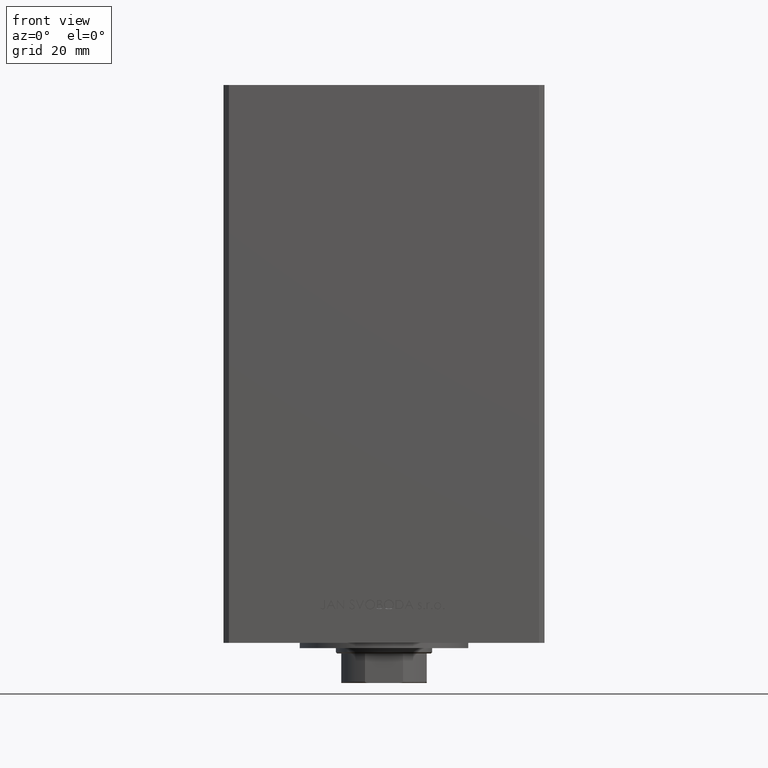
[diagram: clean part render]
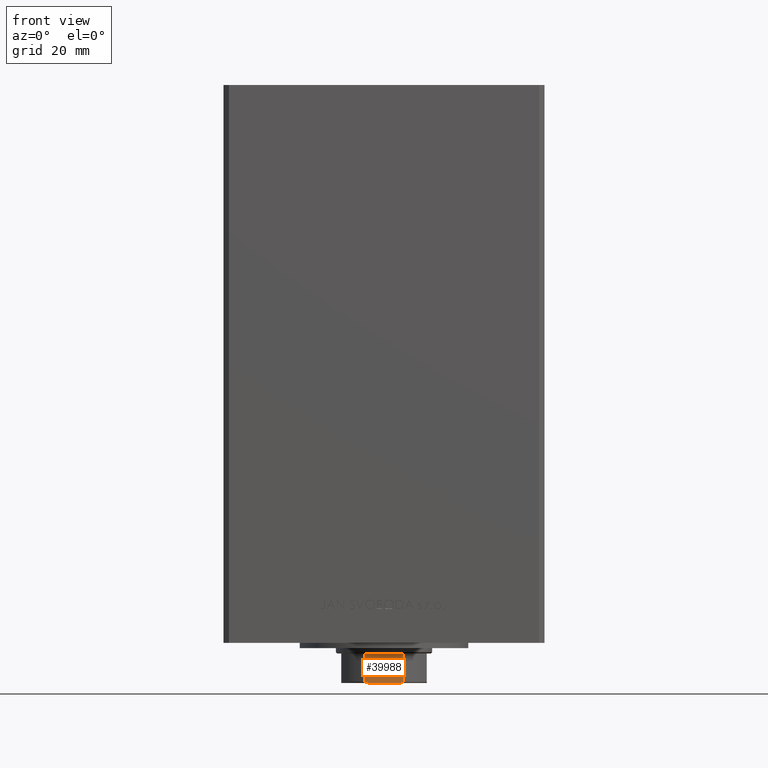
[diagram: same view with one face highlighted and labeled with its STEP entity id]
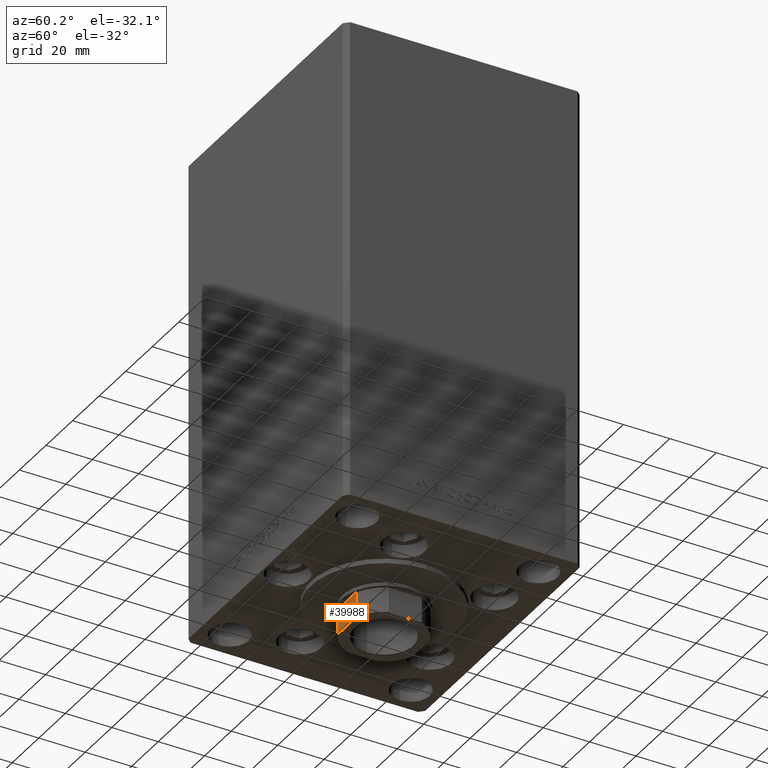
[diagram: same view with one face highlighted and labeled with its STEP entity id]
A machine part, front view. The second image highlights one B-rep face of the part: STEP entity #39988.
A second angle (auxiliary view) of the same face is appended — the face is thin or edge-on in the first view.
In plain terms, the highlighted planar face has unit normal (0, 1, 0).
Its self-contained STEP definition (entity closure, byte-faithful):
#18 = CARTESIAN_POINT ( 'NONE',  ( -6.967626683430006018, -16.00000000000000000, 188.9712986014228022 ) ) ;
#855 = VECTOR ( 'NONE', #36542, 1000.000000000000000 ) ;
#1130 = VERTEX_POINT ( 'NONE', #38748 ) ;
#2425 = CARTESIAN_POINT ( 'NONE',  ( 6.746962372739932157, -16.00000000000000000, 189.1011068297690372 ) ) ;
#3897 = CARTESIAN_POINT ( 'NONE',  ( 7.088723439378916247, -16.00000000000000000, 178.2500000000000284 ) ) ;
#3988 = CARTESIAN_POINT ( 'NONE',  ( -5.999698100839998993, -16.00000000000000355, 189.2500000000000000 ) ) ;
#4248 = DIRECTION ( 'NONE',  ( -1.084202172485504557E-16, 1.000000000000000000, 0.000000000000000000 ) ) ;
#4611 = AXIS2_PLACEMENT_3D ( 'NONE', #46007, #4248, #26877 ) ;
#6490 = ORIENTED_EDGE ( 'NONE', *, *, #20732, .T. ) ;
#8398 = CARTESIAN_POINT ( 'NONE',  ( 7.088723439378916247, -16.00000000000000000, -0.001000000000001000089 ) ) ;
#9873 = CARTESIAN_POINT ( 'NONE',  ( 5.744562646538024175, -16.00000000000000355, 189.2500000000000000 ) ) ;
#10286 = ORIENTED_EDGE ( 'NONE', *, *, #46877, .T. ) ;
#10330 = CARTESIAN_POINT ( 'NONE',  ( -7.088723439378916247, -16.00000000000000000, 188.7500000000000000 ) ) ;
#10978 = FACE_OUTER_BOUND ( 'NONE', #28905, .T. ) ;
#12285 = DIRECTION ( 'NONE',  ( 1.000000000000000000, 1.084202172485504434E-16, 0.000000000000000000 ) ) ;
#12809 = ORIENTED_EDGE ( 'NONE', *, *, #27466, .T. ) ;
#14339 = CARTESIAN_POINT ( 'NONE',  ( 6.968475375953127049, -15.99999999999999645, 188.9705009019615147 ) ) ;
#15162 = CARTESIAN_POINT ( 'NONE',  ( -7.088723439378916247, -16.00000000000000711, 188.8155697653147342 ) ) ;
#15173 = CARTESIAN_POINT ( 'NONE',  ( -5.744562646538029504, -16.00000000000000355, 189.2500000000000000 ) ) ;
#15408 = CARTESIAN_POINT ( 'NONE',  ( -6.744478600285194858, -16.00000000000000355, 189.1022542963852686 ) ) ;
#17418 = VECTOR ( 'NONE', #42214, 1000.000000000000000 ) ;
#17619 = VECTOR ( 'NONE', #47270, 1000.000000000000000 ) ;
#17628 = CARTESIAN_POINT ( 'NONE',  ( 7.088723439378916247, -16.00000000000000000, 188.7500000000000000 ) ) ;
#17661 = VERTEX_POINT ( 'NONE', #15173 ) ;
#18366 = B_SPLINE_CURVE_WITH_KNOTS ( 'NONE', 3,
 ( #36637, #3988, #32898, #44333, #15408, #34085, #18, #38287, #15162, #40849 ),
 .UNSPECIFIED., .F., .F.,
 ( 4, 2, 2, 2, 4 ),
 ( 0.000000000000000000, 0.0007561879621635630858, 0.001134281943245333841, 0.001323328933786239656, 0.001512375924327145904 ),
 .UNSPECIFIED. ) ;
#18587 = EDGE_CURVE ( 'NONE', #1130, #24328, #21627, .T. ) ;
#20477 = CARTESIAN_POINT ( 'NONE',  ( -15.99999999999999645, -16.00000000000000355, 189.2500000000000000 ) ) ;
#20732 = EDGE_CURVE ( 'NONE', #1130, #37216, #47778, .T. ) ;
#21062 = VERTEX_POINT ( 'NONE', #17628 ) ;
#21627 = LINE ( 'NONE', #32810, #855 ) ;
#21705 = VECTOR ( 'NONE', #12285, 1000.000000000000000 ) ;
#24328 = VERTEX_POINT ( 'NONE', #10330 ) ;
#24506 = EDGE_CURVE ( 'NONE', #17661, #28066, #46823, .T. ) ;
#25051 = CARTESIAN_POINT ( 'NONE',  ( 7.088723439378916247, -16.00000000000000000, 188.7500000000000000 ) ) ;
#25154 = CARTESIAN_POINT ( 'NONE',  ( -15.99999999999999645, -16.00000000000000355, 178.2500000000000000 ) ) ;
#25783 = CARTESIAN_POINT ( 'NONE',  ( 7.088723439378915359, -15.99999999999999645, 188.8153596029795551 ) ) ;
#26877 = DIRECTION ( 'NONE',  ( -1.000000000000000000, -1.084202172485504557E-16, 0.000000000000000000 ) ) ;
#27051 = LINE ( 'NONE', #8398, #17418 ) ;
#27466 = EDGE_CURVE ( 'NONE', #21062, #28066, #48335, .T. ) ;
#28066 = VERTEX_POINT ( 'NONE', #38700 ) ;
#28776 = CARTESIAN_POINT ( 'NONE',  ( 6.623467753754347598, -16.00000000000000000, 189.1410978819201887 ) ) ;
#28905 = EDGE_LOOP ( 'NONE', ( #29609, #29989, #38955, #6490, #10286, #12809 ) ) ;
#29513 = CARTESIAN_POINT ( 'NONE',  ( 6.914772706552263060, -16.00000000000000000, 189.0076711345670617 ) ) ;
#29609 = ORIENTED_EDGE ( 'NONE', *, *, #24506, .F. ) ;
#29989 = ORIENTED_EDGE ( 'NONE', *, *, #32196, .T. ) ;
#32196 = EDGE_CURVE ( 'NONE', #17661, #24328, #18366, .T. ) ;
#32810 = CARTESIAN_POINT ( 'NONE',  ( -7.088723439378916247, -16.00000000000000000, -0.001000000000001000089 ) ) ;
#32898 = CARTESIAN_POINT ( 'NONE',  ( -6.251780714621276047, -16.00000000000000355, 189.2305079891187063 ) ) ;
#33503 = CARTESIAN_POINT ( 'NONE',  ( 5.999773414835122942, -16.00000000000000355, 189.2500000000000568 ) ) ;
#34085 = CARTESIAN_POINT ( 'NONE',  ( -6.914158745692617458, -16.00000000000000355, 189.0081288012990228 ) ) ;
#34105 = PLANE ( 'NONE',  #4611 ) ;
#36542 = DIRECTION ( 'NONE',  ( -0.000000000000000000, -0.000000000000000000, 1.000000000000000000 ) ) ;
#36637 = CARTESIAN_POINT ( 'NONE',  ( -5.744562646538029504, -16.00000000000000355, 189.2500000000000000 ) ) ;
#37216 = VERTEX_POINT ( 'NONE', #3897 ) ;
#38287 = CARTESIAN_POINT ( 'NONE',  ( -7.055793701721071898, -15.99999999999999645, 188.8756279161197256 ) ) ;
#38700 = CARTESIAN_POINT ( 'NONE',  ( 5.744562646538024175, -16.00000000000000355, 189.2500000000000000 ) ) ;
#38748 = CARTESIAN_POINT ( 'NONE',  ( -7.088723439378916247, -16.00000000000000000, 178.2500000000000284 ) ) ;
#38955 = ORIENTED_EDGE ( 'NONE', *, *, #18587, .F. ) ;
#39988 = ADVANCED_FACE ( 'NONE', ( #10978 ), #34105, .F. ) ;
#40849 = CARTESIAN_POINT ( 'NONE',  ( -7.088723439378916247, -16.00000000000000000, 188.7500000000000000 ) ) ;
#42214 = DIRECTION ( 'NONE',  ( -0.000000000000000000, -0.000000000000000000, 1.000000000000000000 ) ) ;
#43940 = CARTESIAN_POINT ( 'NONE',  ( 6.252433022027807930, -16.00000000000000000, 189.2306157152108597 ) ) ;
#44333 = CARTESIAN_POINT ( 'NONE',  ( -6.620608993398001019, -16.00000000000000355, 189.1419184437072829 ) ) ;
#46007 = CARTESIAN_POINT ( 'NONE',  ( -15.99999999999999645, -16.00000000000000355, 189.2500000000000000 ) ) ;
#46823 = LINE ( 'NONE', #20477, #21705 ) ;
#46877 = EDGE_CURVE ( 'NONE', #37216, #21062, #27051, .T. ) ;
#47270 = DIRECTION ( 'NONE',  ( 1.000000000000000000, 1.084202172485504434E-16, 0.000000000000000000 ) ) ;
#47778 = LINE ( 'NONE', #25154, #17619 ) ;
#48335 = B_SPLINE_CURVE_WITH_KNOTS ( 'NONE', 3,
 ( #25051, #25783, #48414, #14339, #29513, #2425, #28776, #43940, #33503, #9873 ),
 .UNSPECIFIED., .F., .F.,
 ( 4, 2, 2, 2, 4 ),
 ( 0.000000000000000000, 0.0001928955851489301532, 0.0003857911702978603064, 0.0007715823405957613788, 0.001543164681191583039 ),
 .UNSPECIFIED. ) ;
#48414 = CARTESIAN_POINT ( 'NONE',  ( 7.055665994487712034, -16.00000000000000000, 188.8756422470903829 ) ) ;